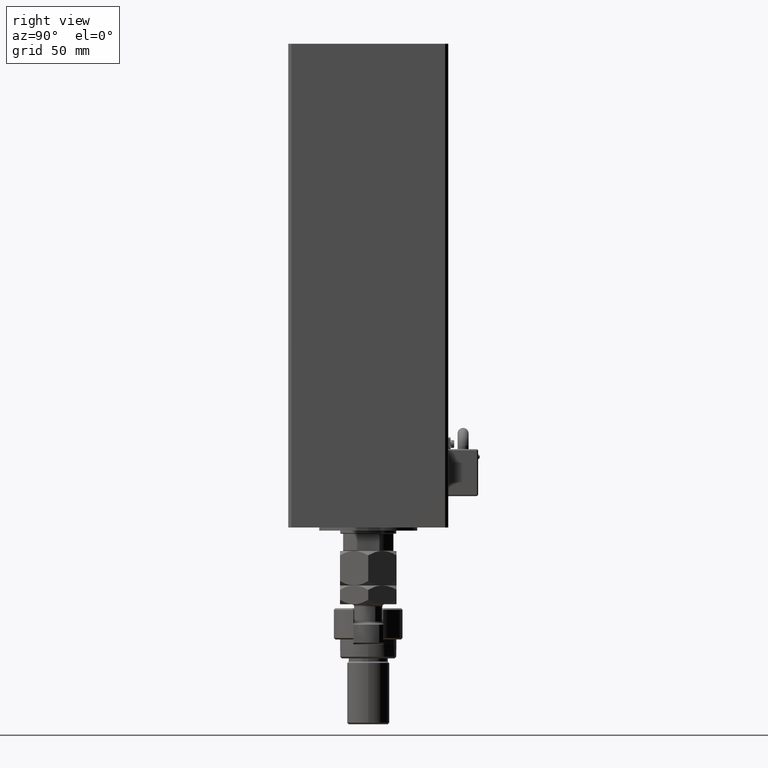
[diagram: clean part render]
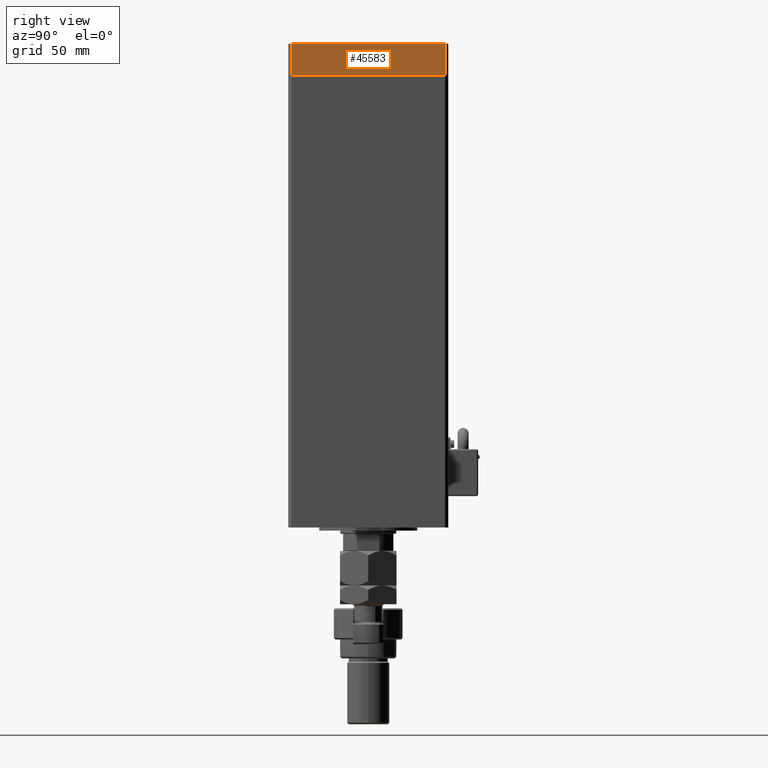
[diagram: same view with one face highlighted and labeled with its STEP entity id]
A machine part, right view. The second image highlights one B-rep face of the part: STEP entity #45583.
In plain terms, the highlighted planar face has unit normal (1, 0, 0).
Its self-contained STEP definition (entity closure, byte-faithful):
#1343 = CARTESIAN_POINT ( 'NONE',  ( 60.00000000000001421, -48.99999999999999289, -20.00000000000000000 ) ) ;
#2652 = LINE ( 'NONE', #32943, #4017 ) ;
#3203 = CARTESIAN_POINT ( 'NONE',  ( 60.00000000000001421, -48.99999999999999289, -20.00000000000000000 ) ) ;
#3744 = EDGE_LOOP ( 'NONE', ( #30448, #45999, #26294, #4601 ) ) ;
#4017 = VECTOR ( 'NONE', #23764, 1000.000000000000000 ) ;
#4601 = ORIENTED_EDGE ( 'NONE', *, *, #45046, .T. ) ;
#8107 = VERTEX_POINT ( 'NONE', #14519 ) ;
#10372 = CARTESIAN_POINT ( 'NONE',  ( 60.00000000000001421, -48.99999999999999289, -20.00000000000000000 ) ) ;
#10791 = VECTOR ( 'NONE', #22224, 1000.000000000000000 ) ;
#12750 = EDGE_CURVE ( 'NONE', #35818, #51619, #17793, .T. ) ;
#13653 = DIRECTION ( 'NONE',  ( 0.000000000000000000, 0.000000000000000000, 1.000000000000000000 ) ) ;
#14031 = CARTESIAN_POINT ( 'NONE',  ( 59.99999999999994316, 49.00000000000000000, 0.000000000000000000 ) ) ;
#14519 = CARTESIAN_POINT ( 'NONE',  ( 59.99999999999994316, 49.00000000000000000, -20.00000000000000000 ) ) ;
#16553 = VERTEX_POINT ( 'NONE', #14031 ) ;
#16703 = VECTOR ( 'NONE', #31085, 1000.000000000000000 ) ;
#17793 = LINE ( 'NONE', #26689, #10791 ) ;
#19068 = PLANE ( 'NONE',  #31778 ) ;
#22224 = DIRECTION ( 'NONE',  ( 0.000000000000000000, 0.000000000000000000, 1.000000000000000000 ) ) ;
#22729 = LINE ( 'NONE', #1343, #16703 ) ;
#23764 = DIRECTION ( 'NONE',  ( -7.080503983578803823E-16, 1.000000000000000000, 0.000000000000000000 ) ) ;
#24588 = FACE_OUTER_BOUND ( 'NONE', #3744, .T. ) ;
#26294 = ORIENTED_EDGE ( 'NONE', *, *, #46766, .T. ) ;
#26689 = CARTESIAN_POINT ( 'NONE',  ( 60.00000000000001421, -48.99999999999999289, -20.00000000000000000 ) ) ;
#30448 = ORIENTED_EDGE ( 'NONE', *, *, #36649, .F. ) ;
#31085 = DIRECTION ( 'NONE',  ( -7.080503983578803823E-16, 1.000000000000000000, 0.000000000000000000 ) ) ;
#31778 = AXIS2_PLACEMENT_3D ( 'NONE', #3203, #49951, #36041 ) ;
#32480 = CARTESIAN_POINT ( 'NONE',  ( 60.00000000000001421, -48.99999999999999289, 0.000000000000000000 ) ) ;
#32943 = CARTESIAN_POINT ( 'NONE',  ( 60.00000000000001421, -48.99999999999999289, 0.000000000000000000 ) ) ;
#35818 = VERTEX_POINT ( 'NONE', #10372 ) ;
#36041 = DIRECTION ( 'NONE',  ( -7.080503983578804809E-16, 1.000000000000000000, 0.000000000000000000 ) ) ;
#36649 = EDGE_CURVE ( 'NONE', #51619, #16553, #2652, .T. ) ;
#40598 = VECTOR ( 'NONE', #13653, 1000.000000000000000 ) ;
#42602 = LINE ( 'NONE', #43151, #40598 ) ;
#43151 = CARTESIAN_POINT ( 'NONE',  ( 59.99999999999994316, 49.00000000000000000, -20.00000000000000000 ) ) ;
#45046 = EDGE_CURVE ( 'NONE', #8107, #16553, #42602, .T. ) ;
#45583 = ADVANCED_FACE ( 'NONE', ( #24588 ), #19068, .T. ) ;
#45999 = ORIENTED_EDGE ( 'NONE', *, *, #12750, .F. ) ;
#46766 = EDGE_CURVE ( 'NONE', #35818, #8107, #22729, .T. ) ;
#49951 = DIRECTION ( 'NONE',  ( 1.000000000000000000, 7.080503983578804809E-16, -0.000000000000000000 ) ) ;
#51619 = VERTEX_POINT ( 'NONE', #32480 ) ;